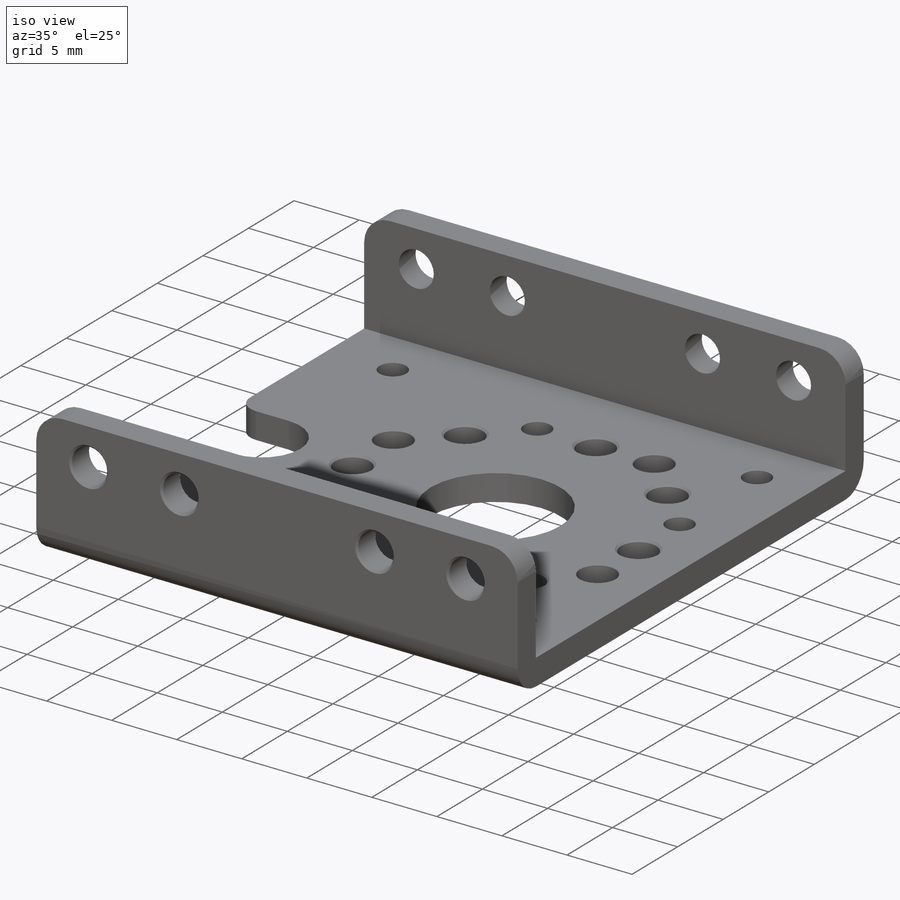
[diagram: iso view]
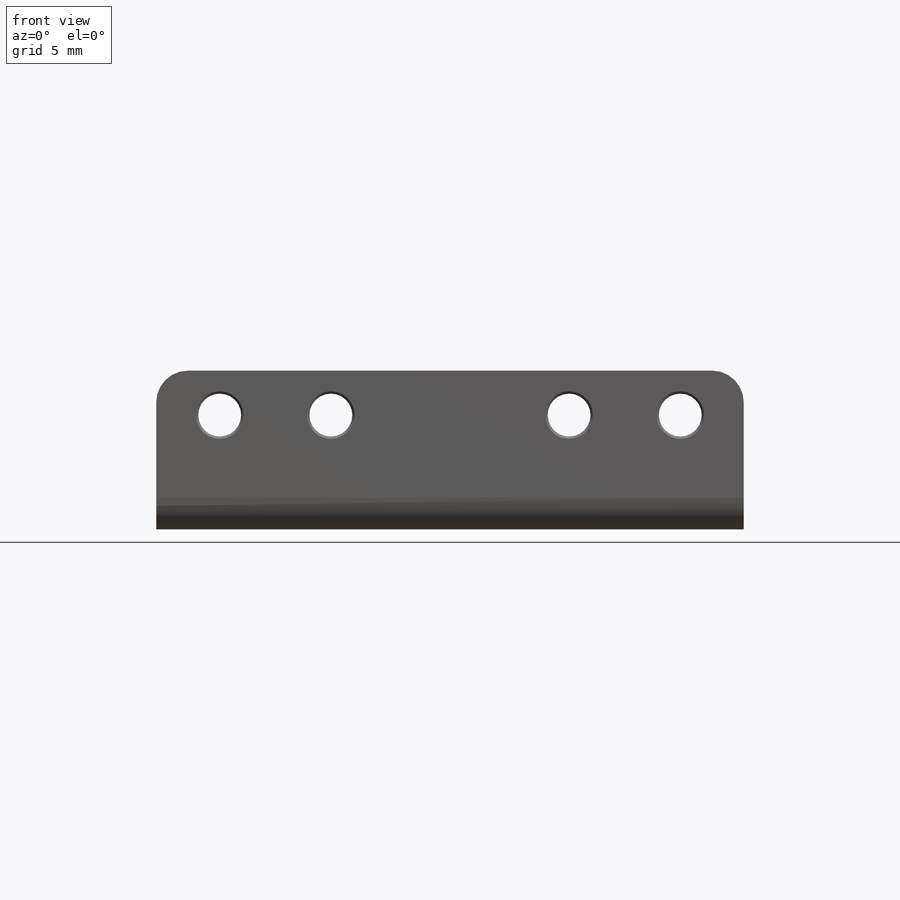
[diagram: front view]
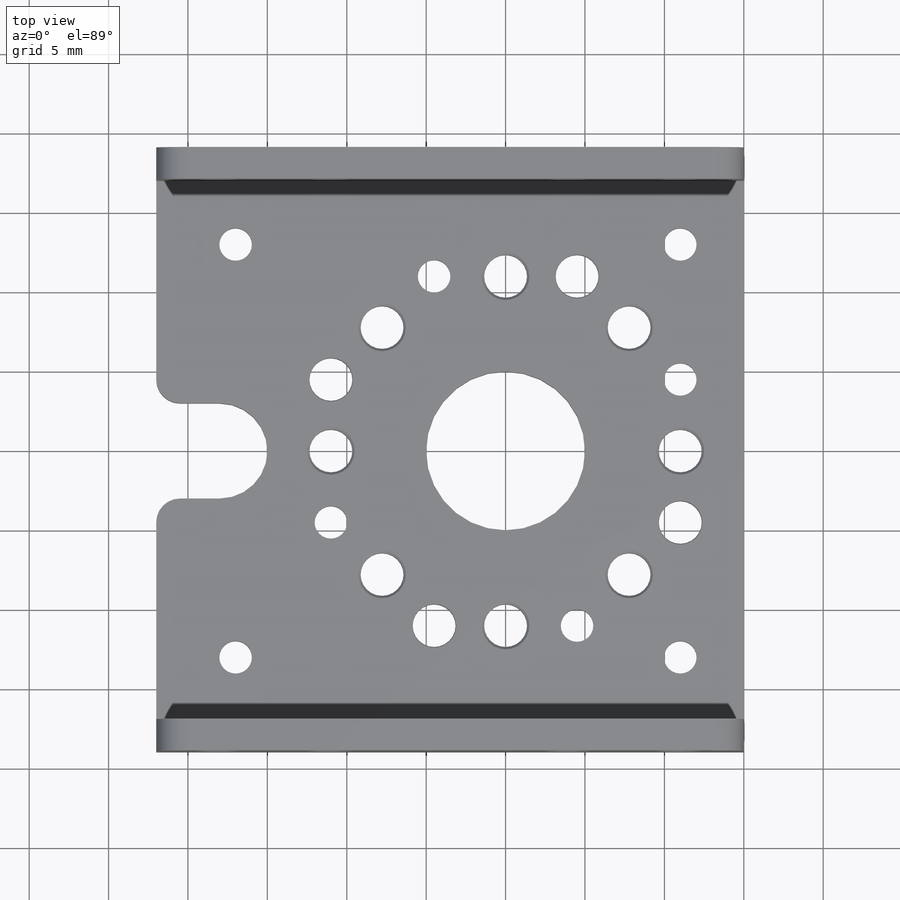
[diagram: top view]
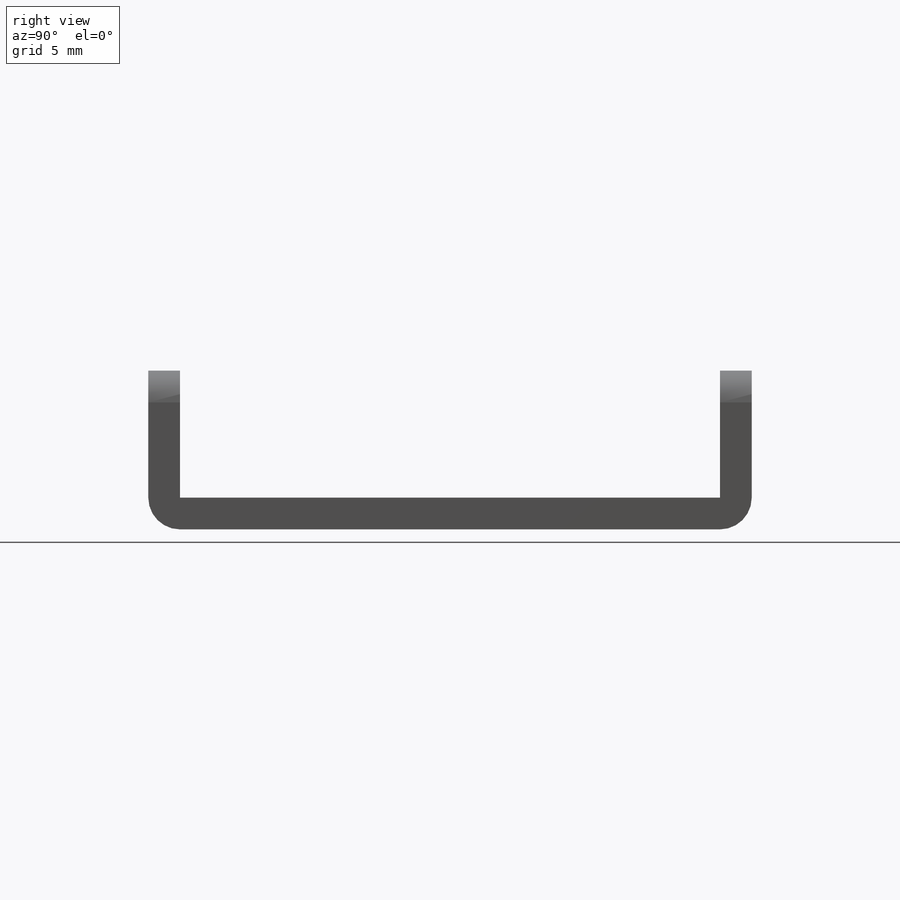
[diagram: right view]
SOLIDWORKS PART (.sldprt)
format: sldprt  version: not decoded by parser v0  size: 634,880 bytes
history: native  units: mm
features: sketch x61, hole x29, chamfer x28, fillet x8, cut_extrude x2, material x1, plane x1, extrude x1 (+16 scaffold rows collapsed)
feature tree (147):
  scaffold x16  (default folders/planes/origin — collapsed)
  material  "Material <not specified>"
  plane  "Plane1"  Offset=10mm
  sketch  "Sketch1"
  extrude  "Boss-Extrude1"  Depth=10mm
  sketch  "Sketch2"
  cut_extrude  "Cut-Extrude1"  Depth=37mm
  sketch  "Sketch3"
  cut_extrude  "Cut-Extrude2"  Depth=2mm
  hole  "Hole1"  Diameter=2.05mm Depth=10mm
  sketch  "Sketch5"
  sketch  "Sketch4"  dims[Diameter=2.05mm Depth=10.0mm]
  hole  "Hole2"  Diameter=2.05mm Depth=10mm
  sketch  "Sketch7"
  sketch  "Sketch6"  dims[Diameter=2.05mm Depth=10.0mm]
  hole  "Hole3"  Diameter=2.05mm Depth=10mm
  sketch  "Sketch9"
  sketch  "Sketch8"  dims[Diameter=2.05mm Depth=10.0mm]
  hole  "Hole4"  Diameter=2.05mm Depth=10mm
  sketch  "Sketch11"
  sketch  "Sketch10"  dims[Diameter=2.05mm Depth=10.0mm]
  hole  "Hole5"  Diameter=2.05mm Depth=10mm
  sketch  "Sketch13"
  sketch  "Sketch12"  dims[Diameter=2.05mm Depth=10.0mm]
  hole  "Hole6"  Diameter=2.05mm Depth=10mm
  sketch  "Sketch15"
  sketch  "Sketch14"  dims[Diameter=2.05mm Depth=10.0mm]
  hole  "Hole7"  Diameter=2.05mm Depth=10mm
  sketch  "Sketch17"
  sketch  "Sketch16"  dims[Diameter=2.05mm Depth=10.0mm]
  hole  "Hole8"  Diameter=2.05mm Depth=10mm
  sketch  "Sketch19"
  sketch  "Sketch18"  dims[Diameter=2.05mm Depth=10.0mm]
  hole  "Hole9"  Diameter=10mm Depth=10mm
  sketch  "Sketch21"
  sketch  "Sketch20"  dims[Diameter=10.0mm Depth=10.0mm]
  hole  "Hole10"  Diameter=2.7mm Depth=2mm
  sketch  "Sketch23"
  sketch  "Sketch22"  dims[Diameter=2.7mm Depth=2.0mm]
  hole  "Hole11"  Diameter=2.7mm Depth=2mm
  sketch  "Sketch25"
  sketch  "Sketch24"  dims[Diameter=2.7mm Depth=2.0mm]
  hole  "Hole12"  Diameter=2.7mm Depth=2mm
  sketch  "Sketch27"
  sketch  "Sketch26"  dims[Diameter=2.7mm Depth=2.0mm]
  hole  "Hole13"  Diameter=2.7mm Depth=2mm
  sketch  "Sketch29"
  sketch  "Sketch28"  dims[Diameter=2.7mm Depth=2.0mm]
  hole  "Hole14"  Diameter=2.7mm Depth=2mm
  sketch  "Sketch31"
  sketch  "Sketch30"  dims[Diameter=2.7mm Depth=2.0mm]
  hole  "Hole15"  Diameter=2.7mm Depth=2mm
  sketch  "Sketch33"
  sketch  "Sketch32"  dims[Diameter=2.7mm Depth=2.0mm]
  hole  "Hole16"  Diameter=2.7mm Depth=2mm
  sketch  "Sketch35"
  sketch  "Sketch34"  dims[Diameter=2.7mm Depth=2.0mm]
  hole  "Hole17"  Diameter=2.7mm Depth=2mm
  sketch  "Sketch37"
  sketch  "Sketch36"  dims[Diameter=2.7mm Depth=2.0mm]
  hole  "Hole18"  Diameter=2.7mm Depth=2mm
  sketch  "Sketch39"
  sketch  "Sketch38"  dims[Diameter=2.7mm Depth=2.0mm]
  hole  "Hole19"  Diameter=2.7mm Depth=2mm
  sketch  "Sketch41"
  sketch  "Sketch40"  dims[Diameter=2.7mm Depth=2.0mm]
  hole  "Hole20"  Diameter=2.7mm Depth=2mm
  sketch  "Sketch43"
  sketch  "Sketch42"  dims[Diameter=2.7mm Depth=2.0mm]
  hole  "Hole21"  Diameter=2.7mm Depth=2mm
  sketch  "Sketch45"
  sketch  "Sketch44"  dims[Diameter=2.7mm Depth=2.0mm]
  hole  "Hole22"  Diameter=2.7mm Depth=2mm
  sketch  "Sketch47"
  sketch  "Sketch46"  dims[Diameter=2.7mm Depth=2.0mm]
  hole  "Hole23"  Diameter=2.7mm Depth=2mm
  sketch  "Sketch49"
  sketch  "Sketch48"  dims[Diameter=2.7mm Depth=2.0mm]
  hole  "Hole24"  Diameter=2.7mm Depth=2mm
  sketch  "Sketch51"
  sketch  "Sketch50"  dims[Diameter=2.7mm Depth=2.0mm]
  hole  "Hole25"  Diameter=2.7mm Depth=2mm
  sketch  "Sketch53"
  sketch  "Sketch52"  dims[Diameter=2.7mm Depth=2.0mm]
  hole  "Hole26"  Diameter=2.7mm Depth=38mm
  sketch  "Sketch55"
  sketch  "Sketch54"  dims[Diameter=2.7mm Depth=38.0mm]
  hole  "Hole27"  Diameter=2.7mm Depth=38mm
  sketch  "Sketch57"
  sketch  "Sketch56"  dims[Diameter=2.7mm Depth=38.0mm]
  hole  "Hole28"  Diameter=2.7mm Depth=38mm
  sketch  "Sketch59"
  sketch  "Sketch58"  dims[Diameter=2.7mm Depth=38.0mm]
  hole  "Hole29"  Diameter=2.7mm Depth=38mm
  sketch  "Sketch61"
  sketch  "Sketch60"  dims[Diameter=2.7mm Depth=38.0mm]
  chamfer  "Chamfer1"  Distance=0.15mm Angle=45deg
  chamfer  "Chamfer2"  Distance=0.15mm Angle=45deg
  chamfer  "Chamfer3"  Distance=0.15mm Angle=45deg
  chamfer  "Chamfer4"  Distance=0.15mm Angle=45deg
  chamfer  "Chamfer5"  Distance=0.15mm Angle=45deg
  chamfer  "Chamfer6"  Distance=0.15mm Angle=45deg
  chamfer  "Chamfer7"  Distance=0.15mm Angle=45deg
  chamfer  "Chamfer8"  Distance=0.15mm Angle=45deg
  chamfer  "Chamfer9"  Distance=0.15mm Angle=45deg
  chamfer  "Chamfer10"  Distance=0.15mm Angle=45deg
  chamfer  "Chamfer11"  Distance=0.15mm Angle=45deg
  chamfer  "Chamfer12"  Distance=0.05mm Angle=45deg
  chamfer  "Chamfer13"  Distance=0.375mm Angle=45deg
  chamfer  "Chamfer14"  Distance=0.05mm Angle=45deg
  chamfer  "Chamfer15"  Distance=0.375mm Angle=45deg
  chamfer  "Chamfer16"  Distance=0.15mm Angle=45deg
  chamfer  "Chamfer17"  Distance=0.375mm Angle=45deg
  chamfer  "Chamfer18"  Distance=0.325mm Angle=45deg
  chamfer  "Chamfer19"  Distance=0.375mm Angle=45deg
  chamfer  "Chamfer20"  Distance=0.15mm Angle=45deg
  chamfer  "Chamfer21"  Distance=0.325mm Angle=45deg
  chamfer  "Chamfer22"  Distance=0.05mm Angle=45deg
  chamfer  "Chamfer23"  Distance=0.325mm Angle=45deg
  chamfer  "Chamfer24"  Distance=0.15mm Angle=45deg
  chamfer  "Chamfer25"  Distance=0.325mm Angle=45deg
  chamfer  "Chamfer26"  Distance=0.05mm Angle=45deg
  chamfer  "Chamfer27"  Distance=0.15mm Angle=45deg
  chamfer  "Chamfer28"  Distance=0.15mm Angle=45deg
  fillet  "Fillet1"  Radius=1.5mm
  fillet  "Fillet2"  Radius=1.5mm
  fillet  "Fillet3"  Radius=2mm
  fillet  "Fillet4"  Radius=2mm
  fillet  "Fillet5"  Radius=2mm
  fillet  "Fillet6"  Radius=2mm
  fillet  "Fillet7"  Radius=2mm
  fillet  "Fillet8"  Radius=2mm
decode coverage: 97 of 129 modeling features carry decoded parameters
summary: Diameter pulled from absorbed wizard sketch
note: suppression state not decoded; provenance and decode notes live in map.json
